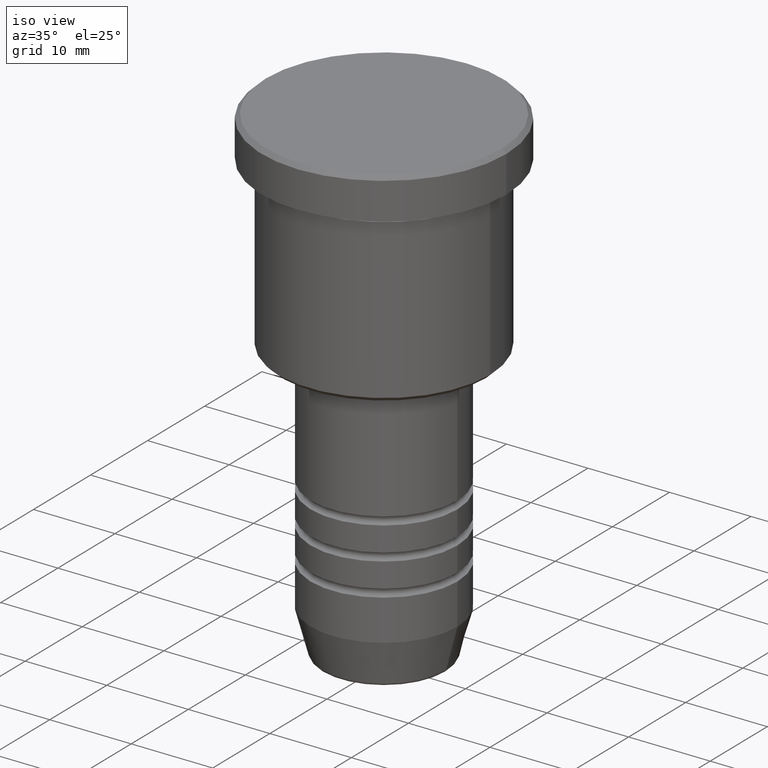
[diagram: clean part render]
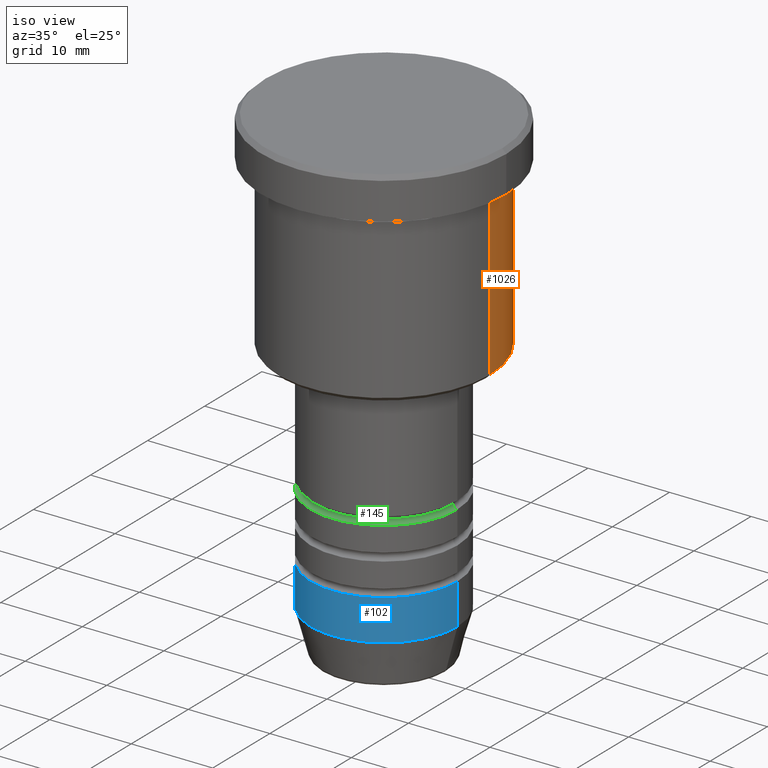
[diagram: same view with three faces highlighted in distinct colors, each labeled with its STEP entity id]
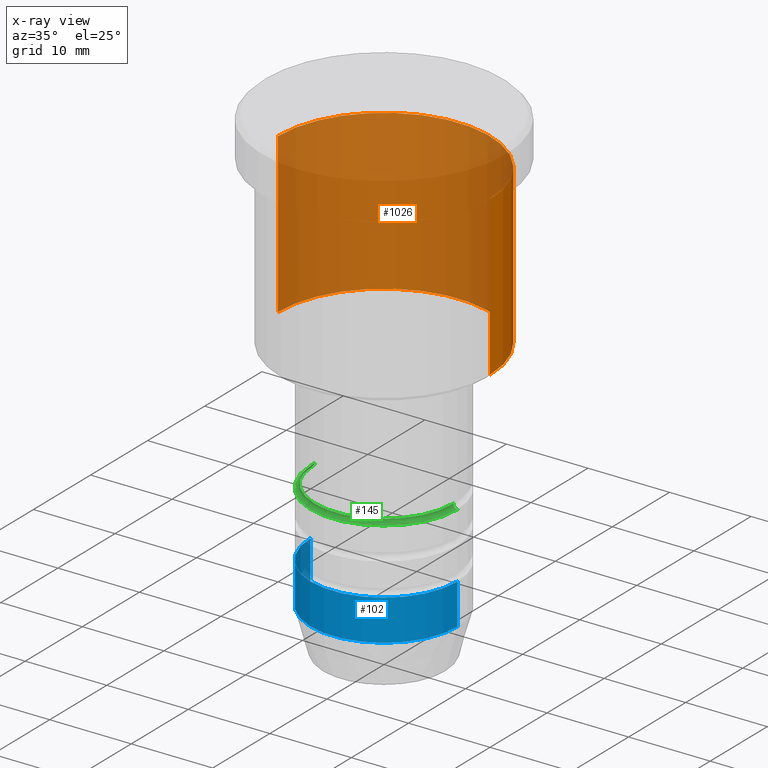
[diagram: x-ray of the same camera — body ghosted, the three highlighted faces saturated]
A machine part, iso view with three faces highlighted in distinct colors.
The next image is the same camera in x-ray (body ghosted, the three faces saturated) — at least one of them is partly hidden behind the body in this view.
Their STEP definitions:

[orange] entity #1026 — the highlighted cylindrical surface (partial cylindrical patch) has radius 13 mm, axis along (-0, -0, 1).
#6 = AXIS2_PLACEMENT_3D ( 'NONE', #605, #781, #348 ) ;
#13 = DIRECTION ( 'NONE',  ( -0.000000000000000000, -0.000000000000000000, 1.000000000000000000 ) ) ;
#14 = CIRCLE ( 'NONE', #1034, 13.00000000000000178 ) ;
#28 = ORIENTED_EDGE ( 'NONE', *, *, #952, .F. ) ;
#51 = CYLINDRICAL_SURFACE ( 'NONE', #6, 13.00000000000000178 ) ;
#86 = VERTEX_POINT ( 'NONE', #1178 ) ;
#115 = CARTESIAN_POINT ( 'NONE',  ( 0.000000000000000000, 0.000000000000000000, -25.49999999999998934 ) ) ;
#141 = ORIENTED_EDGE ( 'NONE', *, *, #268, .T. ) ;
#162 = DIRECTION ( 'NONE',  ( 1.000000000000000000, 0.000000000000000000, 0.000000000000000000 ) ) ;
#199 = EDGE_CURVE ( 'NONE', #265, #86, #14, .T. ) ;
#265 = VERTEX_POINT ( 'NONE', #755 ) ;
#268 = EDGE_CURVE ( 'NONE', #86, #333, #1015, .T. ) ;
#276 = AXIS2_PLACEMENT_3D ( 'NONE', #687, #1049, #162 ) ;
#332 = VECTOR ( 'NONE', #932, 1000.000000000000000 ) ;
#333 = VERTEX_POINT ( 'NONE', #925 ) ;
#348 = DIRECTION ( 'NONE',  ( 1.000000000000000000, 0.000000000000000000, 0.000000000000000000 ) ) ;
#379 = VECTOR ( 'NONE', #578, 1000.000000000000000 ) ;
#394 = CARTESIAN_POINT ( 'NONE',  ( 13.00000000000000178, 0.000000000000000000, 0.000000000000000000 ) ) ;
#410 = CARTESIAN_POINT ( 'NONE',  ( -13.00000000000000178, 1.592040838891559293E-15, 0.000000000000000000 ) ) ;
#447 = CIRCLE ( 'NONE', #276, 13.00000000000000178 ) ;
#476 = LINE ( 'NONE', #394, #379 ) ;
#578 = DIRECTION ( 'NONE',  ( -0.000000000000000000, -0.000000000000000000, 1.000000000000000000 ) ) ;
#586 = CARTESIAN_POINT ( 'NONE',  ( 13.00000000000000178, 0.000000000000000000, -5.999999999999999112 ) ) ;
#605 = CARTESIAN_POINT ( 'NONE',  ( 0.000000000000000000, 0.000000000000000000, 0.000000000000000000 ) ) ;
#619 = ORIENTED_EDGE ( 'NONE', *, *, #706, .F. ) ;
#687 = CARTESIAN_POINT ( 'NONE',  ( 0.000000000000000000, 0.000000000000000000, -5.999999999999999112 ) ) ;
#706 = EDGE_CURVE ( 'NONE', #1096, #333, #447, .T. ) ;
#730 = DIRECTION ( 'NONE',  ( -1.000000000000000000, 0.000000000000000000, 0.000000000000000000 ) ) ;
#755 = CARTESIAN_POINT ( 'NONE',  ( 13.00000000000000178, 0.000000000000000000, -25.49999999999998934 ) ) ;
#781 = DIRECTION ( 'NONE',  ( -0.000000000000000000, -0.000000000000000000, 1.000000000000000000 ) ) ;
#851 = ORIENTED_EDGE ( 'NONE', *, *, #199, .T. ) ;
#925 = CARTESIAN_POINT ( 'NONE',  ( -13.00000000000000178, 1.592040838891559293E-15, -5.999999999999999112 ) ) ;
#932 = DIRECTION ( 'NONE',  ( -0.000000000000000000, -0.000000000000000000, 1.000000000000000000 ) ) ;
#952 = EDGE_CURVE ( 'NONE', #265, #1096, #476, .T. ) ;
#1015 = LINE ( 'NONE', #410, #332 ) ;
#1020 = EDGE_LOOP ( 'NONE', ( #851, #141, #619, #28 ) ) ;
#1026 = ADVANCED_FACE ( 'NONE', ( #1107 ), #51, .T. ) ;
#1034 = AXIS2_PLACEMENT_3D ( 'NONE', #115, #13, #730 ) ;
#1049 = DIRECTION ( 'NONE',  ( -0.000000000000000000, -0.000000000000000000, 1.000000000000000000 ) ) ;
#1096 = VERTEX_POINT ( 'NONE', #586 ) ;
#1107 = FACE_OUTER_BOUND ( 'NONE', #1020, .T. ) ;
#1178 = CARTESIAN_POINT ( 'NONE',  ( -13.00000000000000178, 1.592040838891559293E-15, -25.49999999999998934 ) ) ;

[blue] entity #102 — the highlighted cylindrical surface (partial cylindrical patch) has radius 9 mm, axis along (-0, -0, 1).
#41 = CARTESIAN_POINT ( 'NONE',  ( 9.000000000000000000, 0.000000000000000000, -49.50000000000000000 ) ) ;
#78 = FACE_OUTER_BOUND ( 'NONE', #326, .T. ) ;
#85 = EDGE_CURVE ( 'NONE', #408, #1144, #91, .T. ) ;
#91 = LINE ( 'NONE', #890, #673 ) ;
#102 = ADVANCED_FACE ( 'NONE', ( #78 ), #257, .T. ) ;
#119 = ORIENTED_EDGE ( 'NONE', *, *, #506, .T. ) ;
#167 = CARTESIAN_POINT ( 'NONE',  ( 0.000000000000000000, 0.000000000000000000, -49.50000000000000000 ) ) ;
#184 = CARTESIAN_POINT ( 'NONE',  ( 0.000000000000000000, 0.000000000000000000, 0.000000000000000000 ) ) ;
#196 = ORIENTED_EDGE ( 'NONE', *, *, #463, .T. ) ;
#228 = CARTESIAN_POINT ( 'NONE',  ( 9.000000000000001776, 0.000000000000000000, -54.50000000000000000 ) ) ;
#256 = DIRECTION ( 'NONE',  ( 1.000000000000000000, 0.000000000000000000, 0.000000000000000000 ) ) ;
#257 = CYLINDRICAL_SURFACE ( 'NONE', #995, 9.000000000000001776 ) ;
#280 = DIRECTION ( 'NONE',  ( -0.000000000000000000, -0.000000000000000000, 1.000000000000000000 ) ) ;
#315 = LINE ( 'NONE', #936, #830 ) ;
#321 = DIRECTION ( 'NONE',  ( -0.000000000000000000, -0.000000000000000000, 1.000000000000000000 ) ) ;
#326 = EDGE_LOOP ( 'NONE', ( #763, #196, #119, #478 ) ) ;
#408 = VERTEX_POINT ( 'NONE', #1149 ) ;
#411 = CARTESIAN_POINT ( 'NONE',  ( -9.000000000000000000, 1.102182119232617714E-15, -49.50000000000000000 ) ) ;
#423 = VERTEX_POINT ( 'NONE', #228 ) ;
#463 = EDGE_CURVE ( 'NONE', #408, #423, #1159, .T. ) ;
#478 = ORIENTED_EDGE ( 'NONE', *, *, #591, .F. ) ;
#506 = EDGE_CURVE ( 'NONE', #423, #968, #315, .T. ) ;
#591 = EDGE_CURVE ( 'NONE', #1144, #968, #602, .T. ) ;
#602 = CIRCLE ( 'NONE', #786, 9.000000000000000000 ) ;
#673 = VECTOR ( 'NONE', #280, 1000.000000000000000 ) ;
#752 = DIRECTION ( 'NONE',  ( 1.000000000000000000, 0.000000000000000000, 0.000000000000000000 ) ) ;
#753 = DIRECTION ( 'NONE',  ( -0.000000000000000000, -0.000000000000000000, 1.000000000000000000 ) ) ;
#763 = ORIENTED_EDGE ( 'NONE', *, *, #85, .F. ) ;
#786 = AXIS2_PLACEMENT_3D ( 'NONE', #167, #1061, #256 ) ;
#830 = VECTOR ( 'NONE', #753, 1000.000000000000000 ) ;
#890 = CARTESIAN_POINT ( 'NONE',  ( -9.000000000000001776, 1.102182119232617911E-15, 0.000000000000000000 ) ) ;
#936 = CARTESIAN_POINT ( 'NONE',  ( 9.000000000000001776, 0.000000000000000000, 0.000000000000000000 ) ) ;
#968 = VERTEX_POINT ( 'NONE', #41 ) ;
#990 = DIRECTION ( 'NONE',  ( 1.000000000000000000, 0.000000000000000000, 0.000000000000000000 ) ) ;
#995 = AXIS2_PLACEMENT_3D ( 'NONE', #184, #1182, #990 ) ;
#1055 = AXIS2_PLACEMENT_3D ( 'NONE', #1124, #321, #752 ) ;
#1061 = DIRECTION ( 'NONE',  ( -0.000000000000000000, -0.000000000000000000, 1.000000000000000000 ) ) ;
#1124 = CARTESIAN_POINT ( 'NONE',  ( 0.000000000000000000, 0.000000000000000000, -54.50000000000000000 ) ) ;
#1144 = VERTEX_POINT ( 'NONE', #411 ) ;
#1149 = CARTESIAN_POINT ( 'NONE',  ( -9.000000000000001776, 1.102182119232617911E-15, -54.50000000000000000 ) ) ;
#1159 = CIRCLE ( 'NONE', #1055, 9.000000000000001776 ) ;
#1182 = DIRECTION ( 'NONE',  ( -0.000000000000000000, -0.000000000000000000, 1.000000000000000000 ) ) ;

[green] entity #145 — the highlighted toroidal blend (fillet) surface has major radius 9 mm and minor (blend) radius 0.5 mm.
#3 = DIRECTION ( 'NONE',  ( 0.000000000000000000, -1.000000000000000000, 0.000000000000000000 ) ) ;
#26 = CIRCLE ( 'NONE', #954, 9.000000000000000000 ) ;
#64 = DIRECTION ( 'NONE',  ( 1.224646799147353207E-16, 1.000000000000000000, 0.000000000000000000 ) ) ;
#104 = DIRECTION ( 'NONE',  ( 0.000000000000000000, 0.000000000000000000, -1.000000000000000000 ) ) ;
#142 = CARTESIAN_POINT ( 'NONE',  ( 0.000000000000000000, 0.000000000000000000, -40.99999999999999289 ) ) ;
#145 = ADVANCED_FACE ( 'NONE', ( #1082 ), #401, .F. ) ;
#150 = EDGE_CURVE ( 'NONE', #1100, #493, #853, .T. ) ;
#203 = CIRCLE ( 'NONE', #785, 0.5000000000000004441 ) ;
#204 = EDGE_LOOP ( 'NONE', ( #658, #386, #608, #460 ) ) ;
#284 = CIRCLE ( 'NONE', #1074, 8.500000000000001776 ) ;
#308 = CARTESIAN_POINT ( 'NONE',  ( -8.500000000000001776, 1.071565949253933927E-15, -40.99999999999999289 ) ) ;
#363 = EDGE_CURVE ( 'NONE', #391, #1100, #284, .T. ) ;
#368 = DIRECTION ( 'NONE',  ( 1.000000000000000000, 0.000000000000000000, 0.000000000000000000 ) ) ;
#386 = ORIENTED_EDGE ( 'NONE', *, *, #1091, .T. ) ;
#391 = VERTEX_POINT ( 'NONE', #308 ) ;
#401 = TOROIDAL_SURFACE ( 'NONE', #918, 9.000000000000003553, 0.5000000000000000000 ) ;
#424 = DIRECTION ( 'NONE',  ( 1.000000000000000000, 0.000000000000000000, 0.000000000000000000 ) ) ;
#438 = CARTESIAN_POINT ( 'NONE',  ( 0.000000000000000000, 0.000000000000000000, -41.49999999999999289 ) ) ;
#460 = ORIENTED_EDGE ( 'NONE', *, *, #150, .F. ) ;
#493 = VERTEX_POINT ( 'NONE', #759 ) ;
#535 = CARTESIAN_POINT ( 'NONE',  ( 0.000000000000000000, 0.000000000000000000, -40.99999999999999289 ) ) ;
#546 = EDGE_CURVE ( 'NONE', #566, #493, #26, .T. ) ;
#566 = VERTEX_POINT ( 'NONE', #676 ) ;
#608 = ORIENTED_EDGE ( 'NONE', *, *, #546, .T. ) ;
#623 = CARTESIAN_POINT ( 'NONE',  ( 9.000000000000003553, 0.000000000000000000, -40.99999999999999289 ) ) ;
#657 = DIRECTION ( 'NONE',  ( 1.000000000000000000, 0.000000000000000000, 0.000000000000000000 ) ) ;
#658 = ORIENTED_EDGE ( 'NONE', *, *, #363, .F. ) ;
#676 = CARTESIAN_POINT ( 'NONE',  ( -9.000000000000000000, 1.102182119232617714E-15, -41.49999999999999289 ) ) ;
#727 = AXIS2_PLACEMENT_3D ( 'NONE', #623, #3, #104 ) ;
#759 = CARTESIAN_POINT ( 'NONE',  ( 9.000000000000000000, 0.000000000000000000, -41.49999999999999289 ) ) ;
#785 = AXIS2_PLACEMENT_3D ( 'NONE', #1041, #64, #880 ) ;
#853 = CIRCLE ( 'NONE', #727, 0.5000000000000004441 ) ;
#863 = DIRECTION ( 'NONE',  ( -0.000000000000000000, -0.000000000000000000, 1.000000000000000000 ) ) ;
#880 = DIRECTION ( 'NONE',  ( -1.000000000000000000, 1.224646799147353454E-16, 0.000000000000000000 ) ) ;
#918 = AXIS2_PLACEMENT_3D ( 'NONE', #535, #1119, #657 ) ;
#946 = CARTESIAN_POINT ( 'NONE',  ( 8.500000000000001776, 0.000000000000000000, -40.99999999999999289 ) ) ;
#954 = AXIS2_PLACEMENT_3D ( 'NONE', #438, #1060, #368 ) ;
#1041 = CARTESIAN_POINT ( 'NONE',  ( -9.000000000000003553, 1.102182119232618108E-15, -40.99999999999999289 ) ) ;
#1060 = DIRECTION ( 'NONE',  ( -0.000000000000000000, -0.000000000000000000, 1.000000000000000000 ) ) ;
#1074 = AXIS2_PLACEMENT_3D ( 'NONE', #142, #863, #424 ) ;
#1082 = FACE_OUTER_BOUND ( 'NONE', #204, .T. ) ;
#1091 = EDGE_CURVE ( 'NONE', #391, #566, #203, .T. ) ;
#1100 = VERTEX_POINT ( 'NONE', #946 ) ;
#1119 = DIRECTION ( 'NONE',  ( -0.000000000000000000, -0.000000000000000000, 1.000000000000000000 ) ) ;